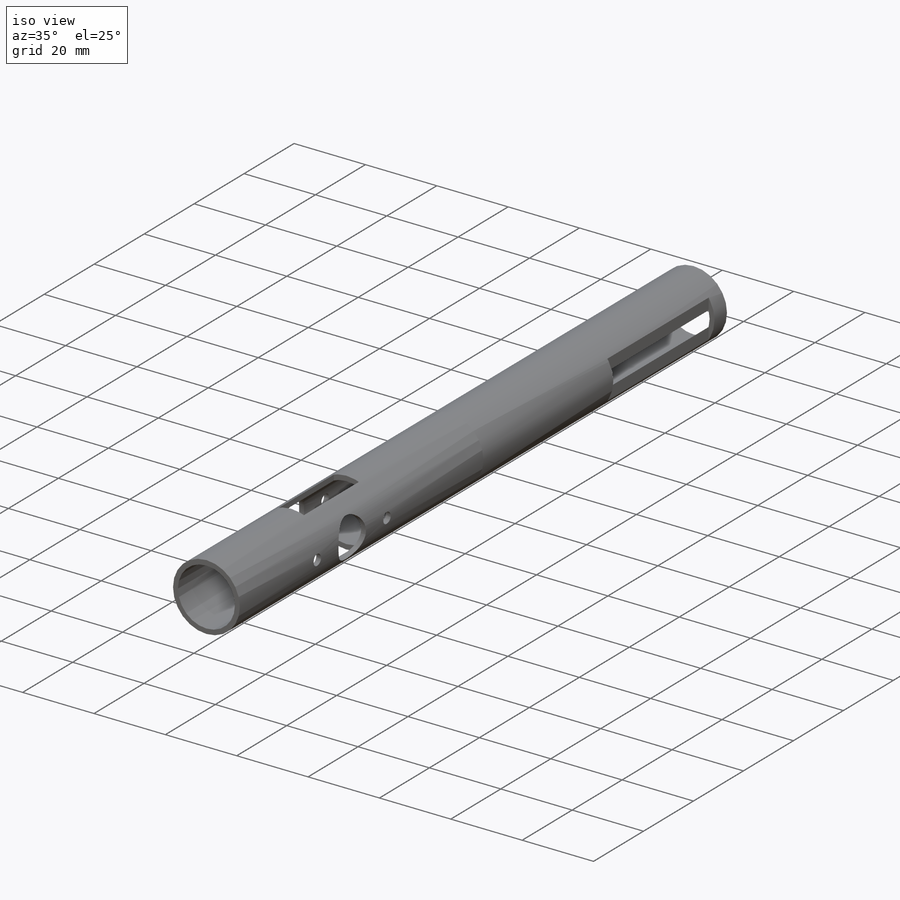
[diagram: iso view]
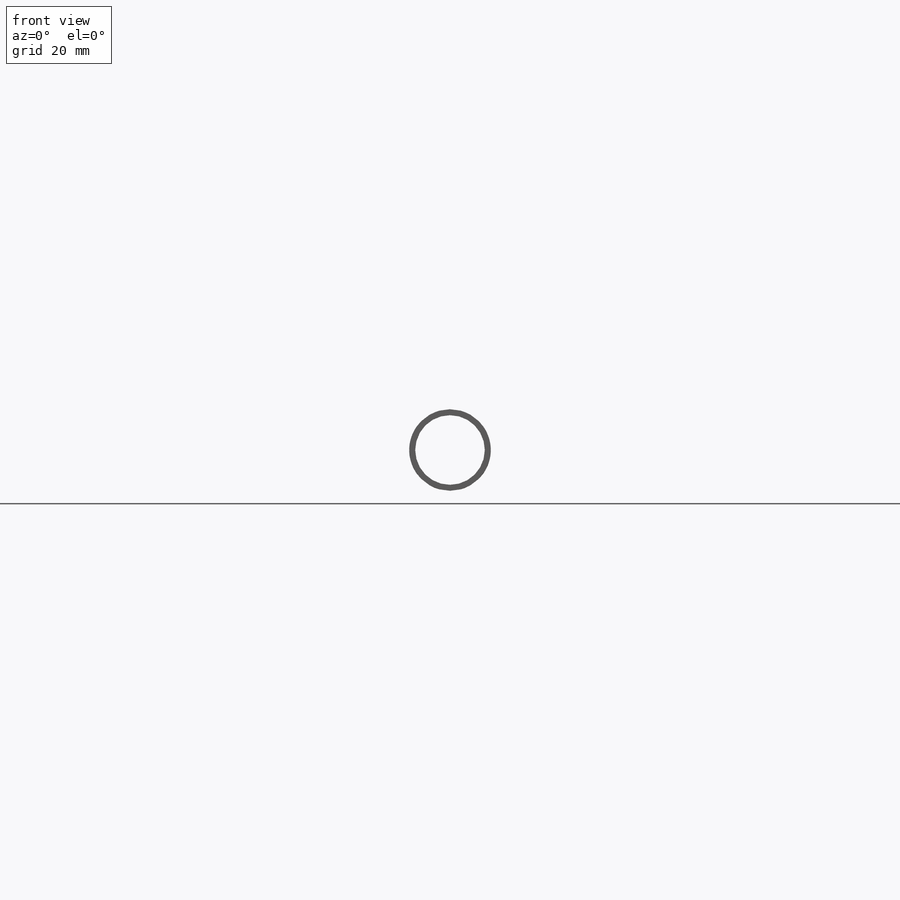
[diagram: front view]
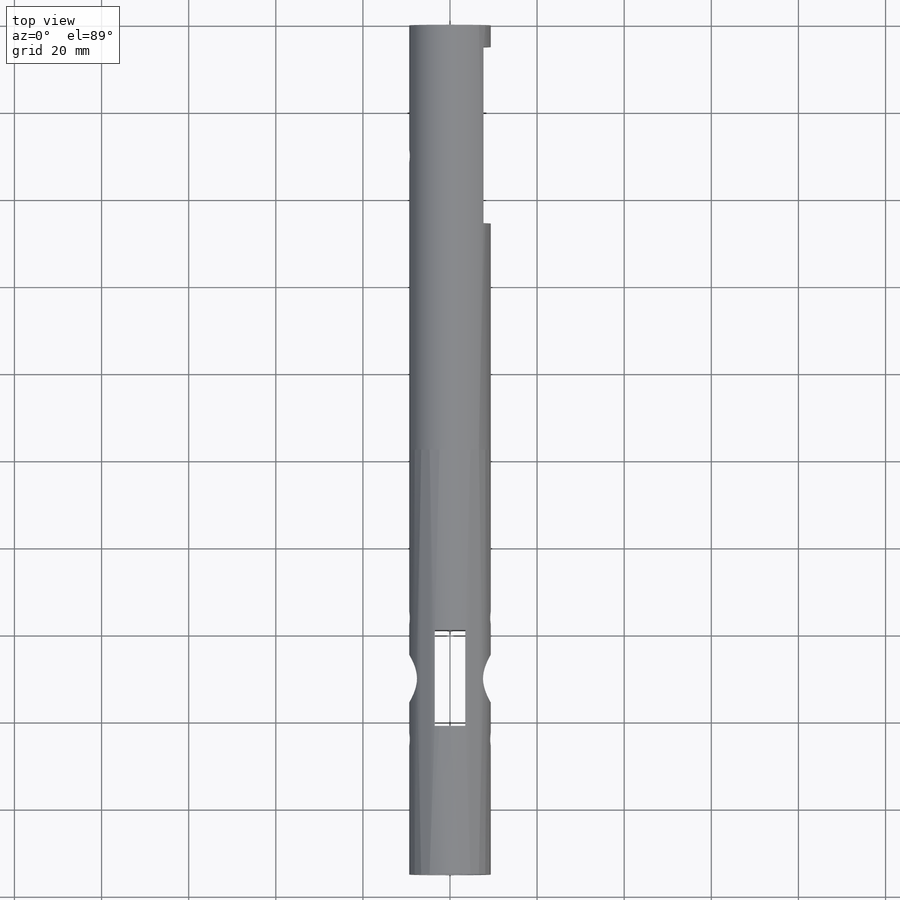
[diagram: top view]
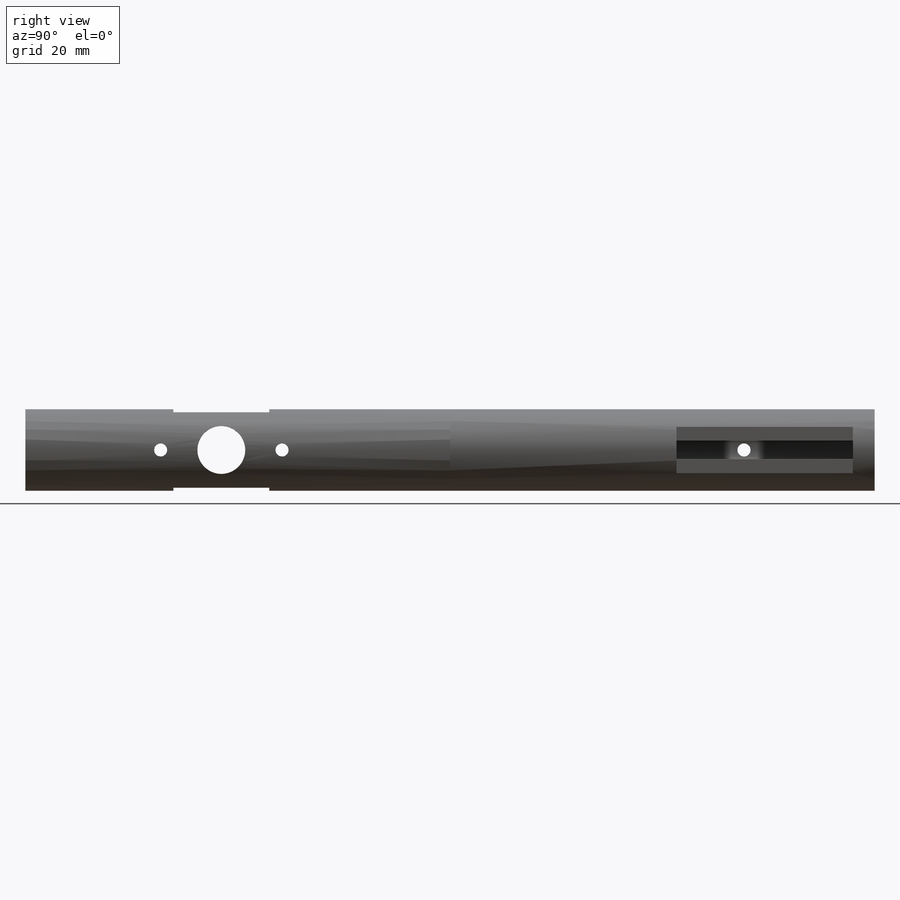
[diagram: right view]
SOLIDWORKS PART (.sldprt)
format: sldprt  version: not decoded by parser v0  size: 353,792 bytes
history: native  units: mm
features: sketch x3, cut_extrude x2, material x1, extrude x1 (+15 scaffold rows collapsed)
feature tree (22):
  scaffold x15  (default folders/planes/origin — collapsed)
  material  "A-Glass Fiber"
  sketch  "Sketch1"  dims[D1=18.72mm D2=15.98mm]
  extrude  "Extrude1"  Depth=195mm
  sketch  "Sketch2"  dims[c1.D2=~3.301584mm c1.D3=5.0mm c1.D5=2.0125mm c1.D6=11.0mm c1.D7=3.0mm c1.D1=30.0mm c2.D2=150.0mm c2.D3=13.9375mm c2.D4=13.9375mm c2.D5=31.0625mm]
  cut_extrude  "Extrude2"  [1 undecoded]
  sketch  "Sketch3"  dims[D1=150.0mm D2=11.0mm D3=22.0mm D4=3.5mm D5=7.0mm D6=6.35mm D7=40.5mm D8=7.7mm D9=5.0mm]
  cut_extrude  "Extrude3"  Depth=25mm
decode coverage: 5 of 6 modeling features carry decoded parameters
note: ~ marks probable driven/reference dimensions
note: 1 parameter value undecoded
note: suppression state not decoded; provenance and decode notes live in map.json
